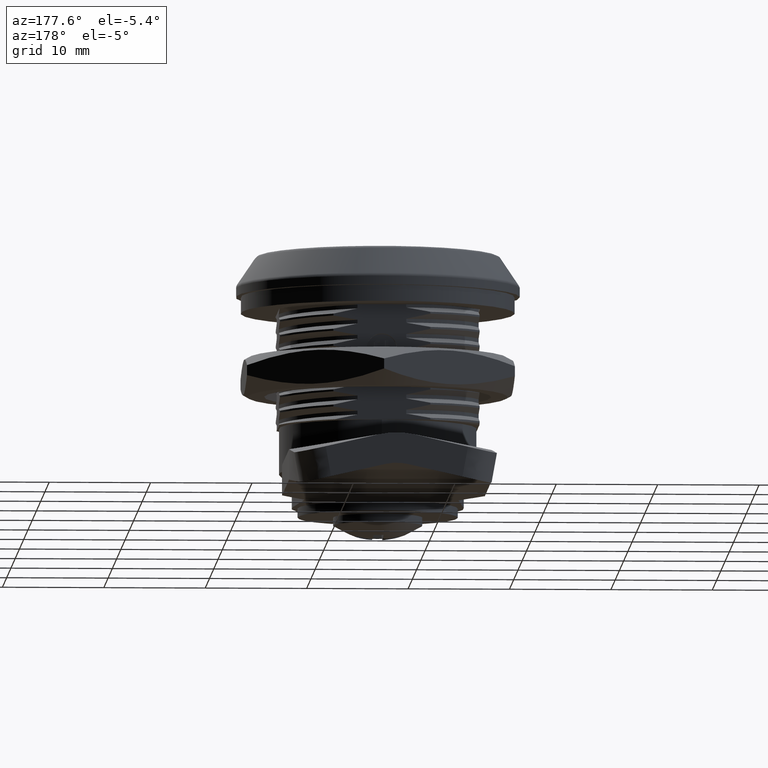
[diagram: clean part render]
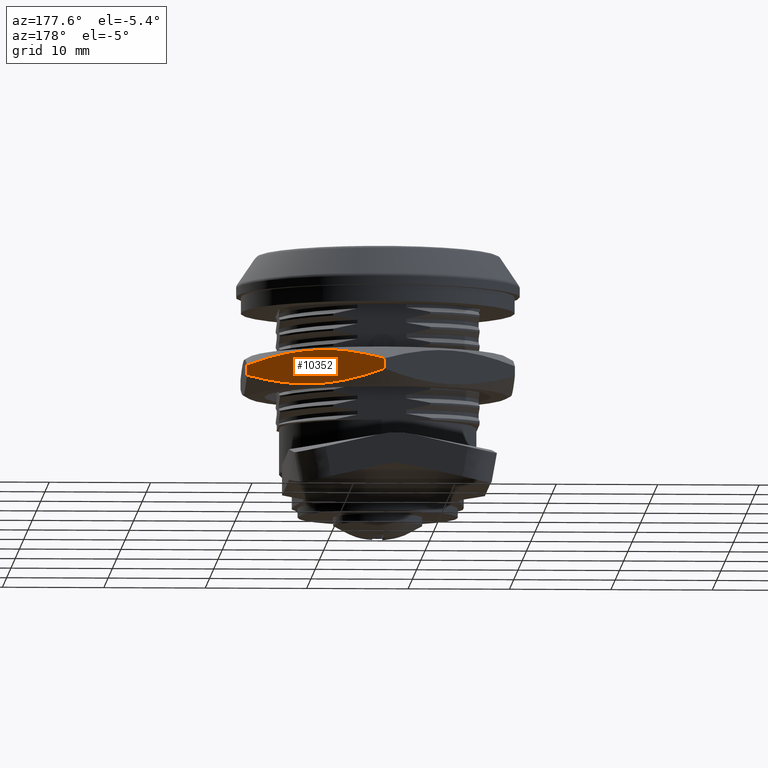
[diagram: same view with one face highlighted and labeled with its STEP entity id]
A machine part, auxiliary view. The second image highlights one B-rep face of the part: STEP entity #10352.
In plain terms, the highlighted planar face has unit normal (0.5, 0.866, 0).
Its self-contained STEP definition (entity closure, byte-faithful):
#388=(
BOUNDED_CURVE()
B_SPLINE_CURVE(2,(#40211,#40212,#40213),.UNSPECIFIED.,.F.,.F.)
B_SPLINE_CURVE_WITH_KNOTS((3,3),(0.,1.54314045186977),.UNSPECIFIED.)
CURVE()
GEOMETRIC_REPRESENTATION_ITEM()
RATIONAL_B_SPLINE_CURVE((1.,1.15470053837925,1.))
REPRESENTATION_ITEM('')
);
#389=(
BOUNDED_CURVE()
B_SPLINE_CURVE(2,(#40214,#40215,#40216),.UNSPECIFIED.,.F.,.F.)
B_SPLINE_CURVE_WITH_KNOTS((3,3),(0.,1.54314045186977),.UNSPECIFIED.)
CURVE()
GEOMETRIC_REPRESENTATION_ITEM()
RATIONAL_B_SPLINE_CURVE((1.,1.15470053837925,1.))
REPRESENTATION_ITEM('')
);
#478=PLANE('',#10967);
#989=LINE('',#40186,#1824);
#991=LINE('',#40209,#1826);
#1824=VECTOR('',#12368,0.98253068635462);
#1826=VECTOR('',#12374,0.98253068635462);
#2975=FACE_OUTER_BOUND('',#3610,.T.);
#3610=EDGE_LOOP('',(#8278,#8279,#8280,#8281));
#4717=VERTEX_POINT('',#40181);
#4718=VERTEX_POINT('',#40185);
#4721=VERTEX_POINT('',#40201);
#4722=VERTEX_POINT('',#40205);
#5987=EDGE_CURVE('',#4717,#4718,#989,.T.);
#5994=EDGE_CURVE('',#4722,#4721,#991,.T.);
#5995=EDGE_CURVE('',#4717,#4721,#388,.T.);
#5996=EDGE_CURVE('',#4722,#4718,#389,.T.);
#8278=ORIENTED_EDGE('',*,*,#5995,.T.);
#8279=ORIENTED_EDGE('',*,*,#5994,.F.);
#8280=ORIENTED_EDGE('',*,*,#5996,.T.);
#8281=ORIENTED_EDGE('',*,*,#5987,.F.);
#10352=ADVANCED_FACE('',(#2975),#478,.T.);
#10967=AXIS2_PLACEMENT_3D('',#40210,#12375,#12376);
#12368=DIRECTION('',(0.,0.,-1.));
#12374=DIRECTION('',(0.,0.,1.));
#12375=DIRECTION('center_axis',(0.5,0.866025403784439,0.));
#12376=DIRECTION('ref_axis',(0.,0.,-1.));
#40181=CARTESIAN_POINT('',(6.66133814775094E-15,15.25,2.39126534317731));
#40185=CARTESIAN_POINT('',(5.42968447980741E-15,15.25,1.40873465682269));
#40186=CARTESIAN_POINT('',(6.66133814775094E-15,15.25,0.));
#40201=CARTESIAN_POINT('',(13.2068874077127,7.62499999999999,2.39126534317731));
#40205=CARTESIAN_POINT('',(13.2068874077127,7.625,1.40873465682269));
#40209=CARTESIAN_POINT('',(13.2068874077127,7.62499999999999,0.));
#40210=CARTESIAN_POINT('Origin',(13.2068874077127,7.625,3.8));
#40211=CARTESIAN_POINT('Ctrl Pts',(1.20676415720126E-14,15.25,2.39126534317731));
#40212=CARTESIAN_POINT('Ctrl Pts',(6.60344370385635,11.4375,4.59241324446276));
#40213=CARTESIAN_POINT('Ctrl Pts',(13.2068874077127,7.625,2.39126534317731));
#40214=CARTESIAN_POINT('Ctrl Pts',(13.2068874077127,7.625,1.40873465682269));
#40215=CARTESIAN_POINT('Ctrl Pts',(6.60344370385635,11.4375,-0.792413244462758));
#40216=CARTESIAN_POINT('Ctrl Pts',(1.20676415720126E-14,15.25,1.40873465682269));